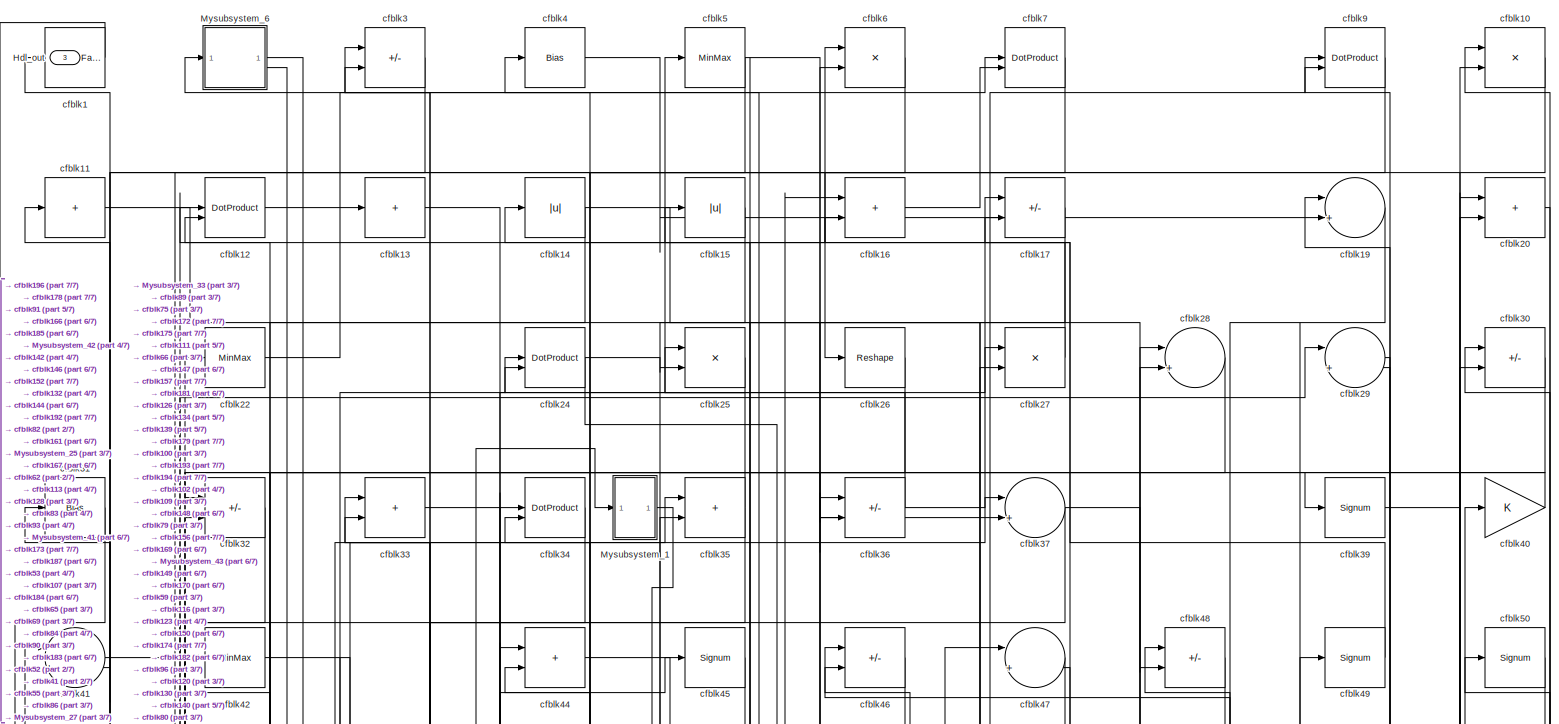
[diagram: root canvas - part 1/7, full width, top band]
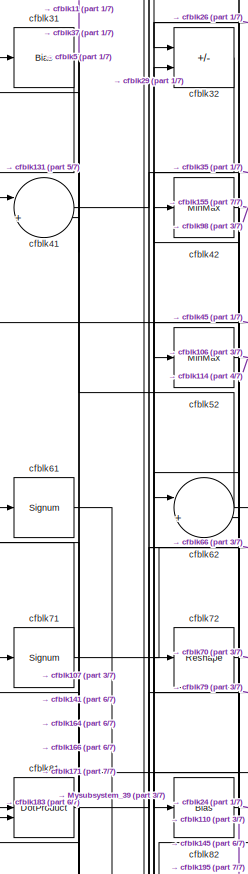
[diagram: root canvas - part 2/7, top left region]
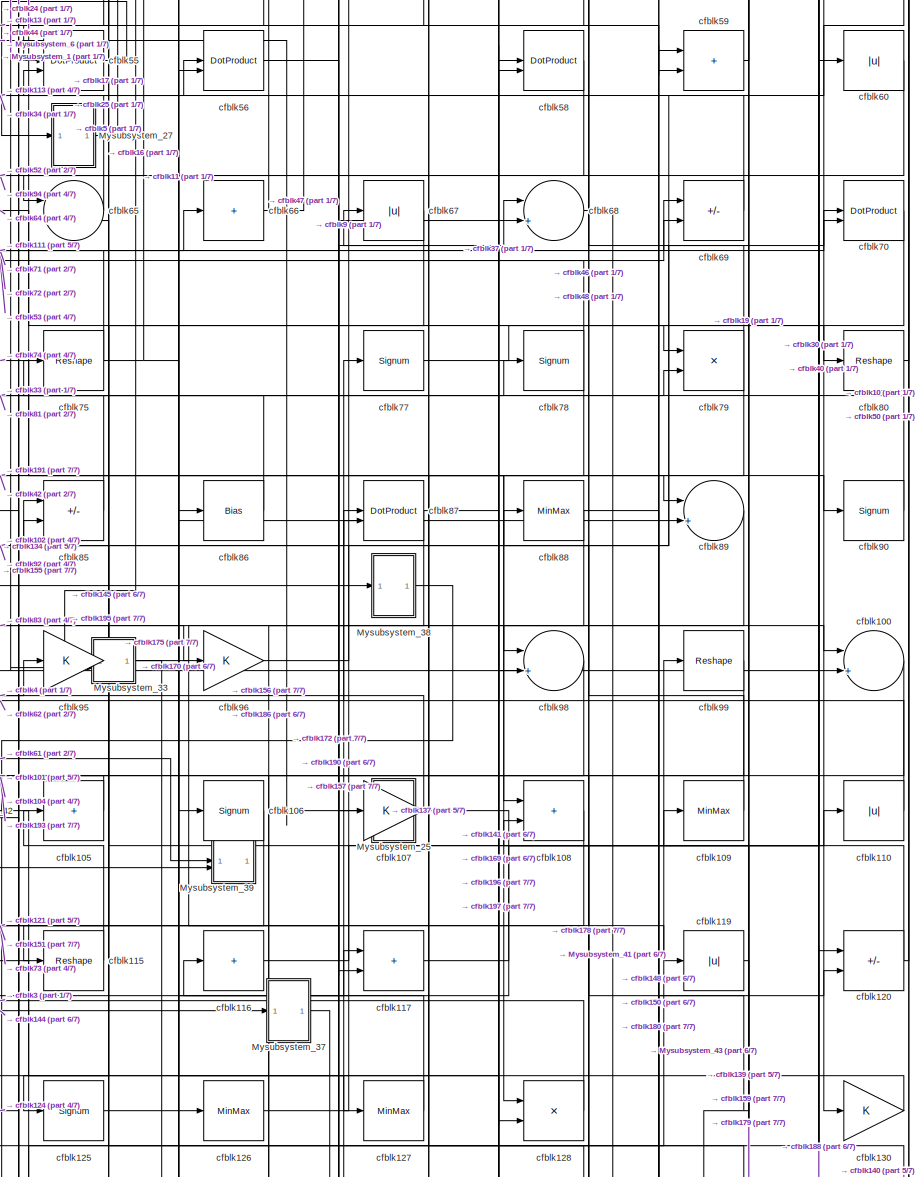
[diagram: root canvas - part 3/7, middle right region]
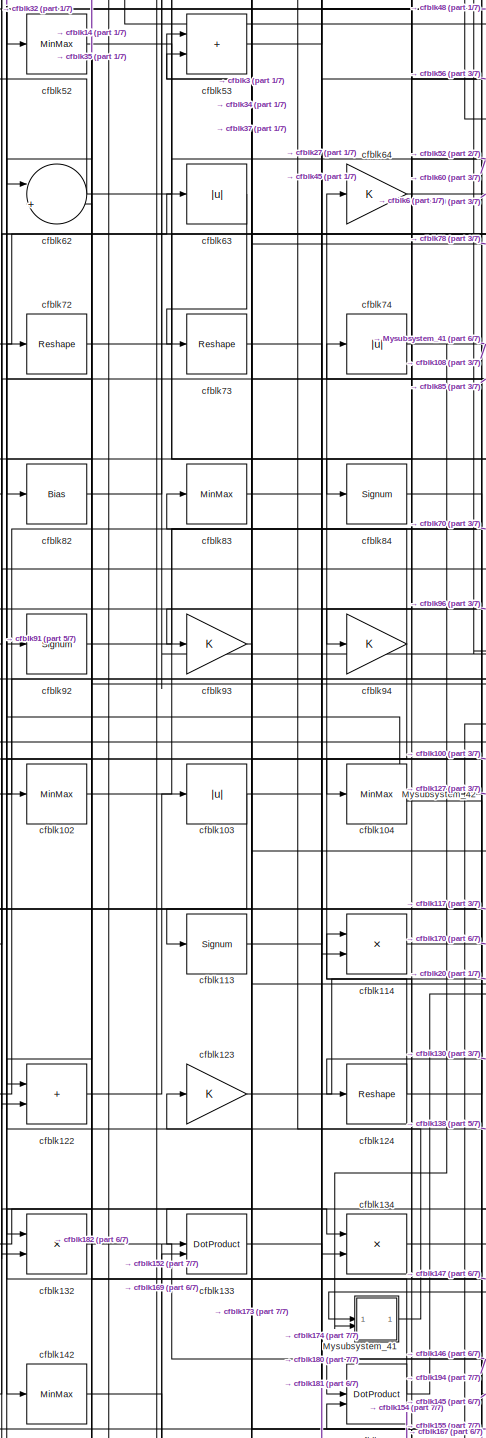
[diagram: root canvas - part 4/7, middle left region]
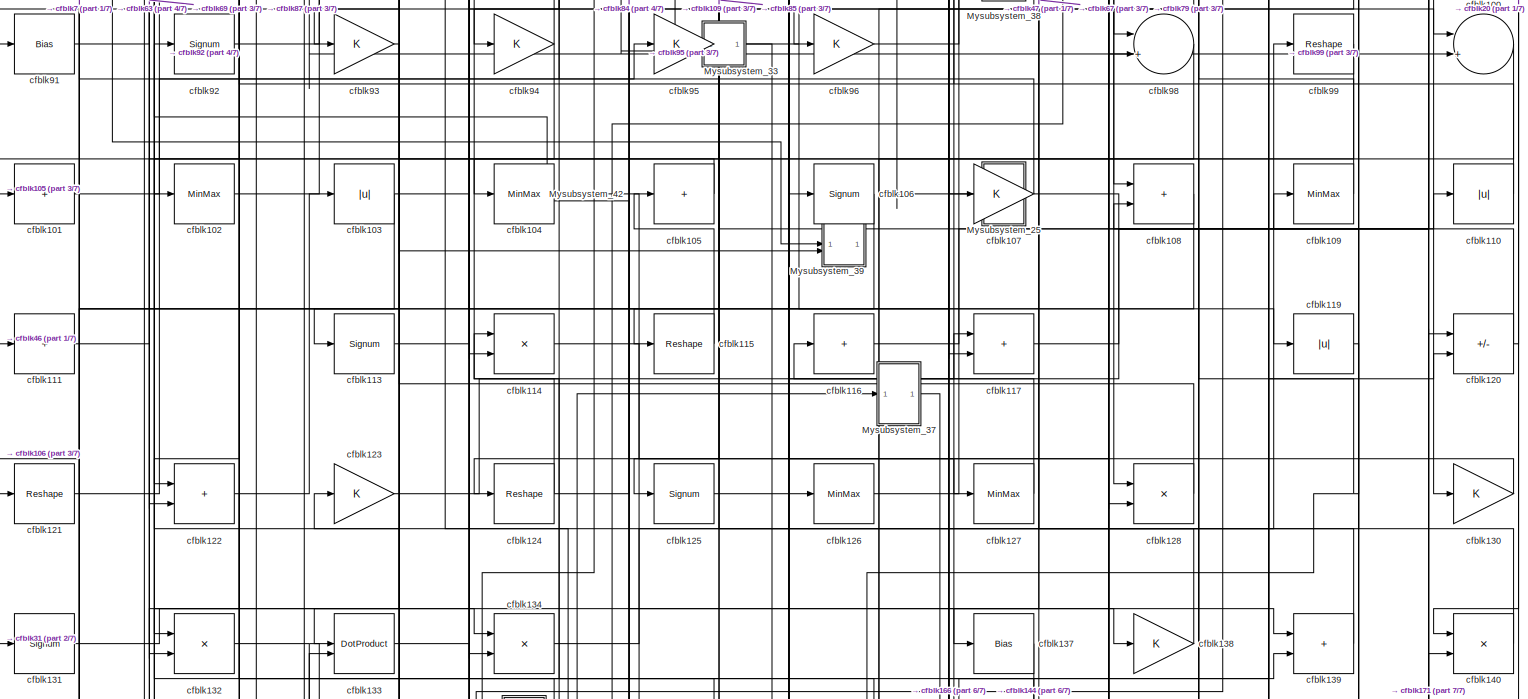
[diagram: root canvas - part 5/7, full width, middle band]
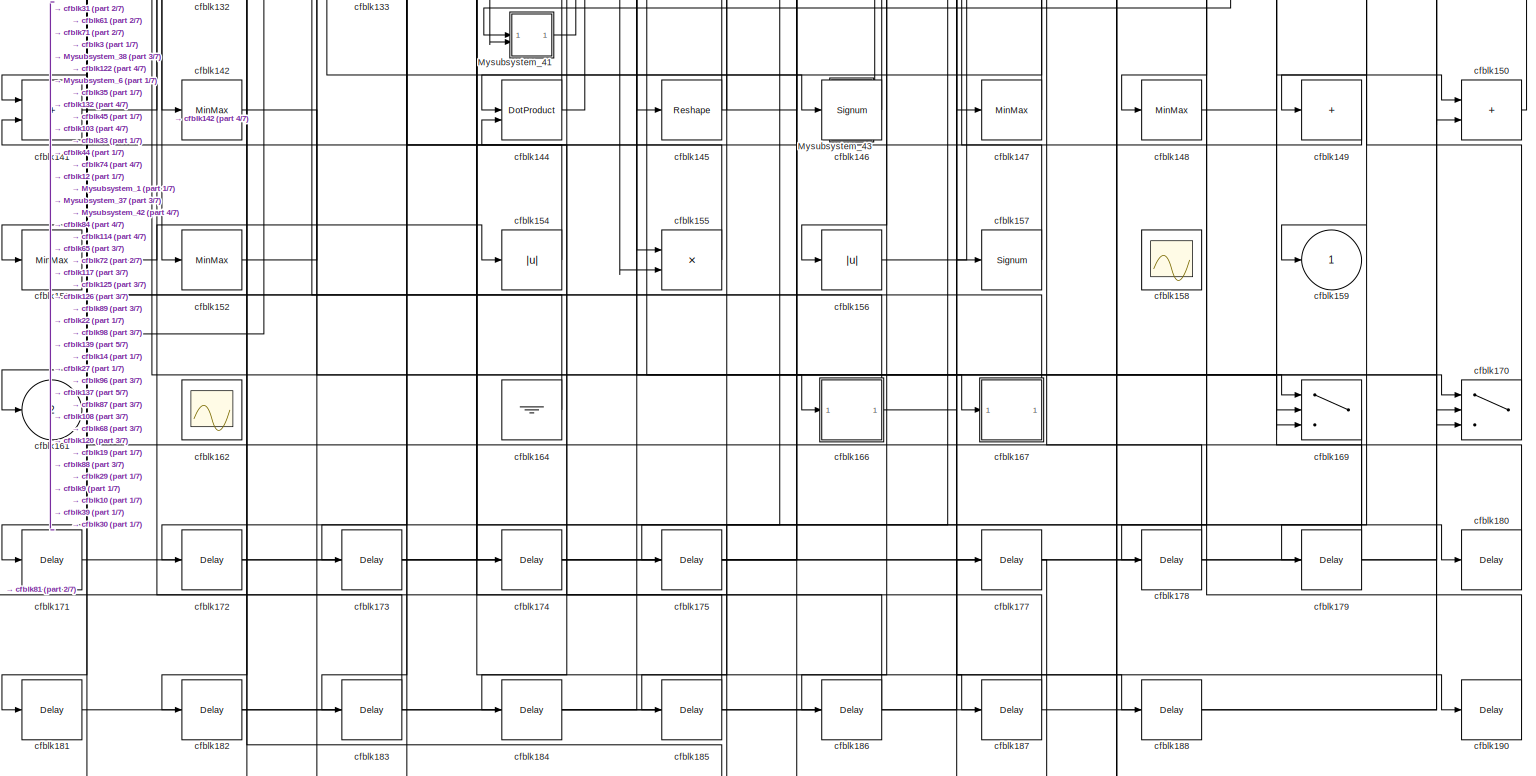
[diagram: root canvas - part 6/7, full width, bottom band]
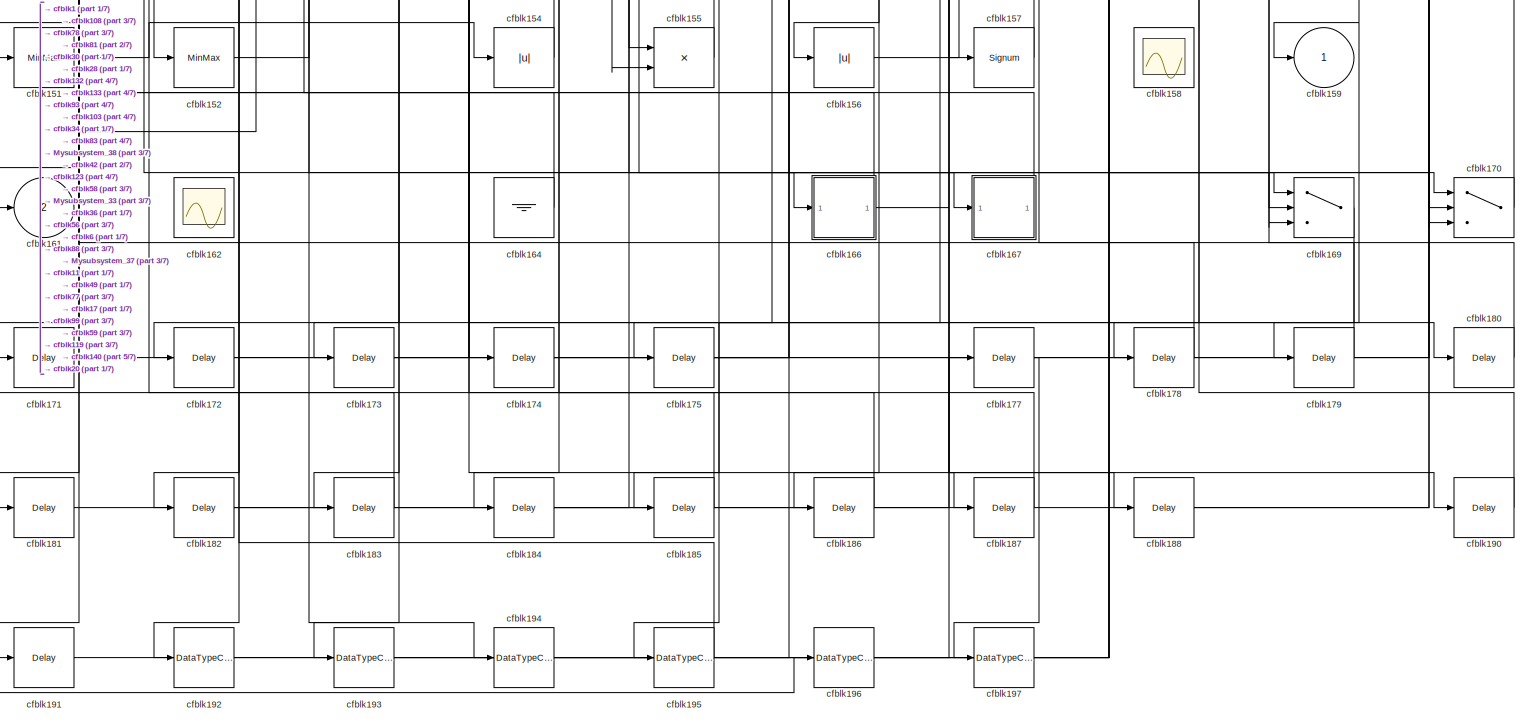
[diagram: root canvas - part 7/7, full width, bottom band]
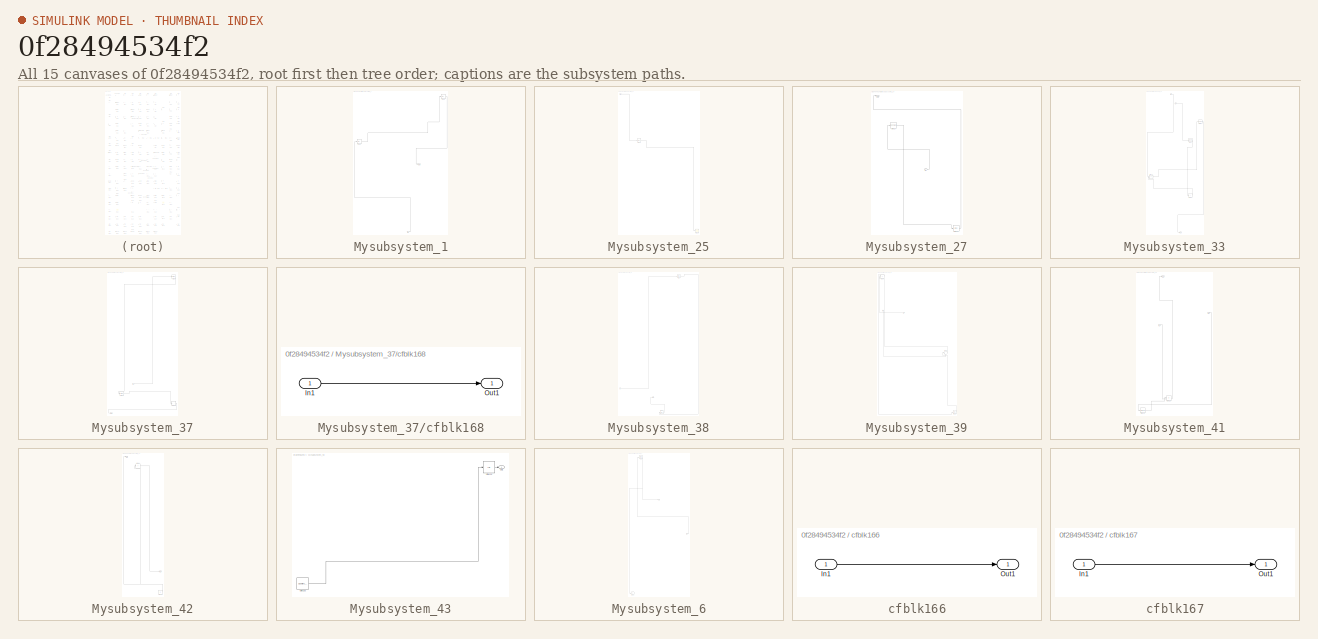
[diagram: thumbnail index - all 15 canvases of the model, root first then tree order]
MODEL slx_0f28494534f2
KIND model
CONFIG AbsTol = auto
CONFIG EnableMultiTasking = off
CONFIG FixedStep = auto
CONFIG MaxStep = auto
CONFIG MinStep = auto
CONFIG RelTol = 1e-3
CONFIG SampleTimeConstraint = Unconstrained
CONFIG SolverName = VariableStepAuto
CONFIG StartTime = 0.0
CONFIG StopTime = 10.0
BLOCK [Outport] Hdl_out
  OutDataTypeStr = uint8
  Port = 3
BLOCK [SubSystem] Mysubsystem_1
  RTWFcnName = Mysubsystem_1
  RTWFcnNameOpts = User specified
  RTWFileNameOpts = Use function name
  RTWSystemCode = Reusable function
  TreatAsAtomicUnit = on
BLOCK [Inport] Mysubsystem_1/In1
BLOCK [Outport] Mysubsystem_1/Out1
BLOCK [Abs] Mysubsystem_1/cfblk18
  SaturateOnIntegerOverflow = off
BLOCK [Abs] Mysubsystem_1/cfblk51
  SaturateOnIntegerOverflow = off
BLOCK [SubSystem] Mysubsystem_25
  RTWFcnName = Mysubsystem_25
  RTWFcnNameOpts = User specified
  RTWFileNameOpts = Use function name
  RTWSystemCode = Reusable function
  TreatAsAtomicUnit = on
BLOCK [Inport] Mysubsystem_25/In1
BLOCK [Scope] Mysubsystem_25/cfblk160
  Floating = off
  NumInputPorts = 1
  ScopeSpecificationString = Simulink.scopes.TimeScopeBlockCfg('CurrentConfiguration', extmgr.ConfigurationSet(extmgr.Configuration('Core','General UI',true),extmgr.Configuration('Core','Source UI',true),extmgr.Configuration('Sources','WiredSimulink',true,'DataLoggingVariableName','ScopeData2','DataLoggingSaveFormat','Array','DataLoggingLimitDataPoints',true,'DataLoggingDecimation','1'),extmgr.Configuration('Visuals','Time Do...<+868ch>
BLOCK [Bias] Mysubsystem_25/cfblk54
  Bias = 0.0
  SaturateOnIntegerOverflow = off
BLOCK [SubSystem] Mysubsystem_27
  RTWFcnName = Mysubsystem_27
  RTWFcnNameOpts = User specified
  RTWFileNameOpts = Use function name
  RTWSystemCode = Reusable function
  TreatAsAtomicUnit = on
BLOCK [Inport] Mysubsystem_27/In1
BLOCK [Outport] Mysubsystem_27/Out1
BLOCK [Reshape] Mysubsystem_27/cfblk23
BLOCK [Bias] Mysubsystem_27/cfblk97
  Bias = 0.0
  SaturateOnIntegerOverflow = off
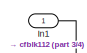
[diagram: Mysubsystem_33 - part 1/4, top center region]
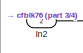
[diagram: Mysubsystem_33 - part 2/4, top center region]
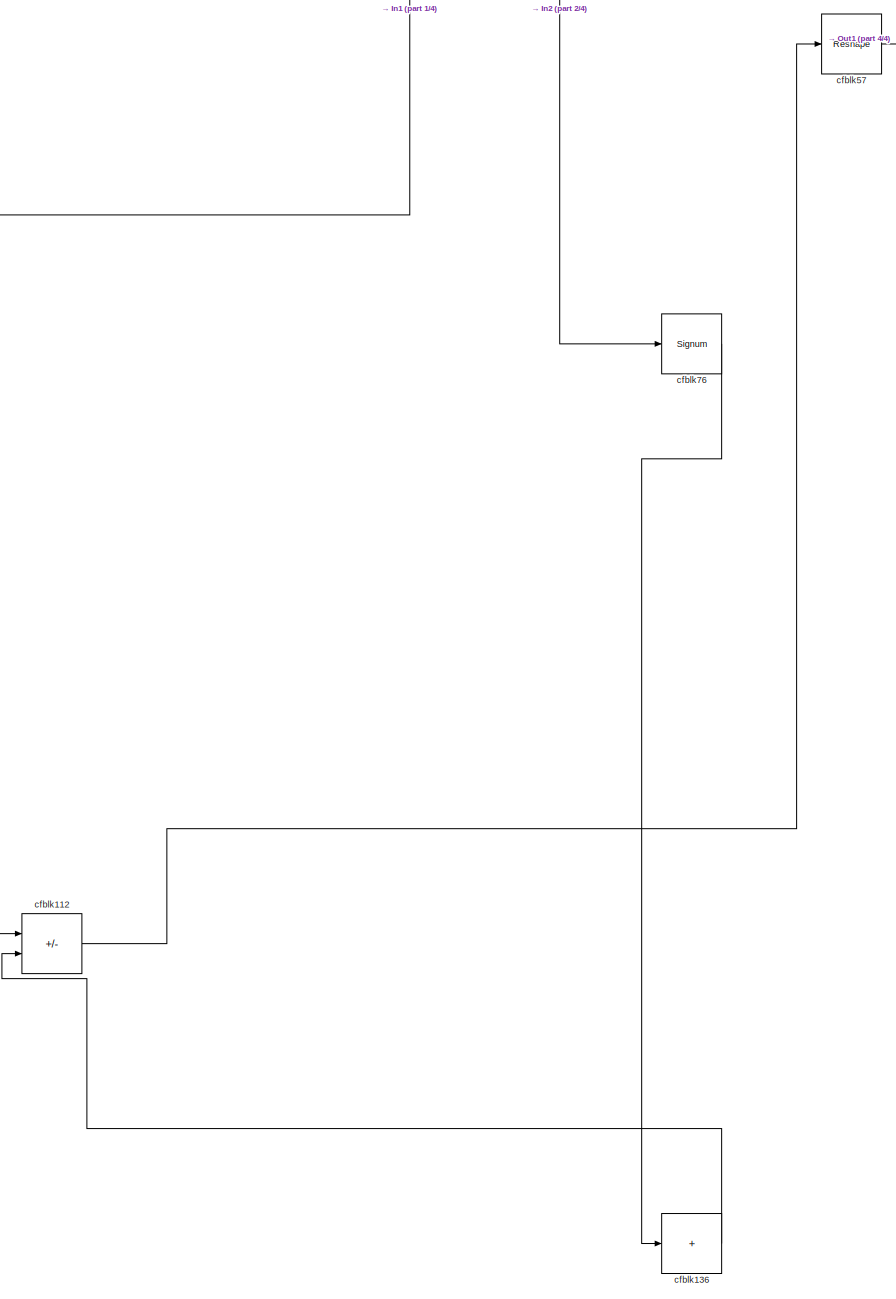
[diagram: Mysubsystem_33 - part 3/4, full width, middle band]
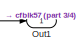
[diagram: Mysubsystem_33 - part 4/4, bottom center region]
BLOCK [SubSystem] Mysubsystem_33
  RTWFcnName = Mysubsystem_33
  RTWFcnNameOpts = User specified
  RTWFileNameOpts = Use function name
  RTWSystemCode = Reusable function
  TreatAsAtomicUnit = on
BLOCK [Inport] Mysubsystem_33/In1
BLOCK [Inport] Mysubsystem_33/In2
  Port = 2
BLOCK [Outport] Mysubsystem_33/Out1
BLOCK [Sum] Mysubsystem_33/cfblk112
  IconShape = rectangular
  Inputs = +-
BLOCK [Sum] Mysubsystem_33/cfblk136
  IconShape = rectangular
  Inputs = +
BLOCK [Reshape] Mysubsystem_33/cfblk57
BLOCK [Signum] Mysubsystem_33/cfblk76
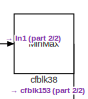
[diagram: Mysubsystem_37 - part 1/2, top right region]
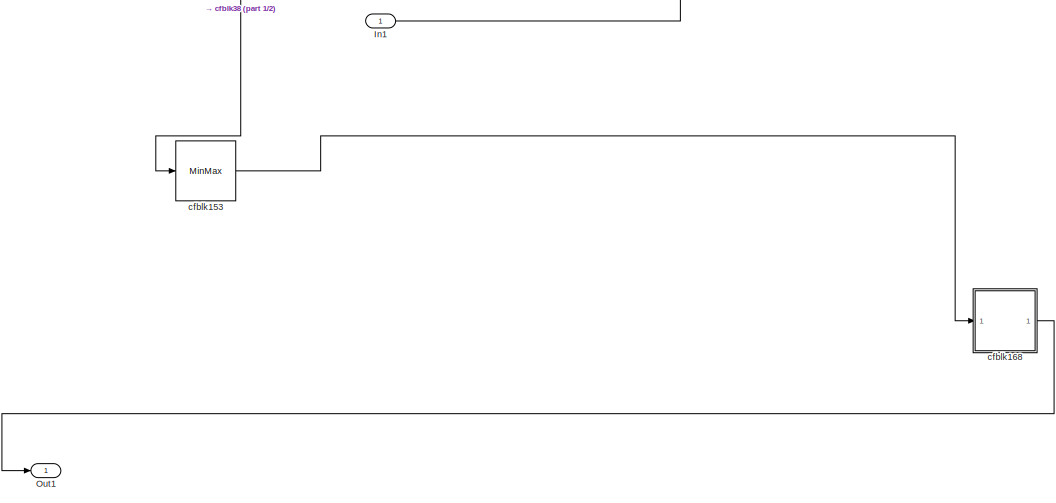
[diagram: Mysubsystem_37 - part 2/2, full width, bottom band]
BLOCK [SubSystem] Mysubsystem_37
  RTWFcnName = Mysubsystem_37
  RTWFcnNameOpts = User specified
  RTWFileNameOpts = Use function name
  RTWSystemCode = Reusable function
  TreatAsAtomicUnit = on
BLOCK [Inport] Mysubsystem_37/In1
BLOCK [Outport] Mysubsystem_37/Out1
BLOCK [MinMax] Mysubsystem_37/cfblk153
BLOCK [SubSystem] Mysubsystem_37/cfblk168
  LibrarySourceBlock = hdlsllib/Ports &\nSubsystems/Subsystem
BLOCK [Inport] Mysubsystem_37/cfblk168/In1
BLOCK [Outport] Mysubsystem_37/cfblk168/Out1
BLOCK [MinMax] Mysubsystem_37/cfblk38
BLOCK [SubSystem] Mysubsystem_38
  RTWFcnName = Mysubsystem_38
  RTWFcnNameOpts = User specified
  RTWFileNameOpts = Use function name
  RTWSystemCode = Reusable function
  TreatAsAtomicUnit = on
BLOCK [Inport] Mysubsystem_38/In1
BLOCK [Outport] Mysubsystem_38/Out1
BLOCK [Delay] Mysubsystem_38/cfblk176
  InputPortMap = u0
  SampleTime = 1
BLOCK [MinMax] Mysubsystem_38/cfblk8
BLOCK [SubSystem] Mysubsystem_39
  RTWFcnName = Mysubsystem_39
  RTWFcnNameOpts = User specified
  RTWFileNameOpts = Use function name
  RTWSystemCode = Reusable function
  TreatAsAtomicUnit = on
BLOCK [Inport] Mysubsystem_39/In1
BLOCK [Inport] Mysubsystem_39/In2
  Port = 2
BLOCK [Sum] Mysubsystem_39/cfblk118
  Inputs = |++
BLOCK [Delay] Mysubsystem_39/cfblk189
  InputPortMap = u0
  SampleTime = 1
BLOCK [Product] Mysubsystem_39/cfblk21
  Inputs = */
  RndMeth = Zero
  SaturateOnIntegerOverflow = on
BLOCK [SubSystem] Mysubsystem_41
  RTWFcnName = Mysubsystem_41
  RTWFcnNameOpts = User specified
  RTWFileNameOpts = Use function name
  RTWSystemCode = Reusable function
  TreatAsAtomicUnit = on
BLOCK [Inport] Mysubsystem_41/In1
BLOCK [Inport] Mysubsystem_41/In2
  Port = 2
BLOCK [Outport] Mysubsystem_41/Out1
BLOCK [Product] Mysubsystem_41/cfblk135
  Inputs = */
  RndMeth = Zero
  SaturateOnIntegerOverflow = on
BLOCK [Signum] Mysubsystem_41/cfblk143
BLOCK [SubSystem] Mysubsystem_42
  RTWFcnName = Mysubsystem_42
  RTWFcnNameOpts = User specified
  RTWFileNameOpts = Use function name
  RTWSystemCode = Reusable function
  TreatAsAtomicUnit = on
BLOCK [Outport] Mysubsystem_42/Out1
BLOCK [Outport] Mysubsystem_42/Out2
  Port = 2
BLOCK [Constant] Mysubsystem_42/cfblk165
  SampleTime = -1
BLOCK [Sum] Mysubsystem_42/cfblk43
  IconShape = rectangular
  Inputs = +
BLOCK [SubSystem] Mysubsystem_43
  RTWFcnName = Mysubsystem_43
  RTWFcnNameOpts = User specified
  RTWFileNameOpts = Use function name
  RTWSystemCode = Reusable function
  TreatAsAtomicUnit = on
BLOCK [Outport] Mysubsystem_43/Out1
BLOCK [Abs] Mysubsystem_43/cfblk129
  SaturateOnIntegerOverflow = off
BLOCK [Reference] Mysubsystem_43/cfblk163  REF=hdlsllib/Sources/Counter
Limited
  SourceBlock = hdlsllib/Sources/Counter\nLimited
  SourceType = Counter Limited
BLOCK [SubSystem] Mysubsystem_6
  RTWFcnName = Mysubsystem_6
  RTWFcnNameOpts = User specified
  RTWFileNameOpts = Use function name
  RTWSystemCode = Reusable function
  TreatAsAtomicUnit = on
BLOCK [Outport] Mysubsystem_6/cfblk161
  Port = 2
  VectorParamsAs1DForOutWhenUnconnected = off
BLOCK [Reference] Mysubsystem_6/cfblk2  REF=hdlsllib/Logic and Bit
Operations/Bit Slice
  SourceBlock = hdlsllib/Logic and Bit\nOperations/Bit Slice
  SourceType = Bit Slice
BLOCK [Inport] Mysubsystem_6/u
BLOCK [Outport] Mysubsystem_6/y
BLOCK [Reference] cfblk1  REF=hdlsllib/Logic and Bit
Operations/Detect Fall
Nonpositive
  SourceBlock = hdlsllib/Logic and Bit\nOperations/Detect Fall\nNonpositive
  SourceType = Detect Fall Nonpositive
BLOCK [Product] cfblk10
  Inputs = */
  OutDataTypeStr = uint8
  RndMeth = Zero
  SaturateOnIntegerOverflow = on
BLOCK [Sum] cfblk100
  Inputs = |++
  OutDataTypeStr = uint8
BLOCK [Sum] cfblk101
  IconShape = rectangular
  Inputs = +
  OutDataTypeStr = uint8
BLOCK [MinMax] cfblk102
  OutDataTypeStr = uint8
BLOCK [Abs] cfblk103
  OutDataTypeStr = uint8
  SaturateOnIntegerOverflow = off
BLOCK [MinMax] cfblk104
  OutDataTypeStr = uint8
BLOCK [Sum] cfblk105
  IconShape = rectangular
  Inputs = +
  OutDataTypeStr = uint8
BLOCK [Signum] cfblk106
BLOCK [Gain] cfblk107
  OutDataTypeStr = uint8
BLOCK [Sum] cfblk108
  IconShape = rectangular
  OutDataTypeStr = uint8
BLOCK [MinMax] cfblk109
  OutDataTypeStr = uint8
BLOCK [Sum] cfblk11
  IconShape = rectangular
  Inputs = +
  OutDataTypeStr = uint8
BLOCK [Abs] cfblk110
  OutDataTypeStr = uint8
  SaturateOnIntegerOverflow = off
BLOCK [Sum] cfblk111
  IconShape = rectangular
  Inputs = +
  OutDataTypeStr = uint8
BLOCK [Signum] cfblk113
BLOCK [Product] cfblk114
  Inputs = */
  OutDataTypeStr = uint8
  RndMeth = Zero
  SaturateOnIntegerOverflow = on
BLOCK [Reshape] cfblk115
BLOCK [Sum] cfblk116
  IconShape = rectangular
  Inputs = +
  OutDataTypeStr = uint8
BLOCK [Sum] cfblk117
  IconShape = rectangular
  OutDataTypeStr = uint8
BLOCK [Abs] cfblk119
  OutDataTypeStr = uint8
  SaturateOnIntegerOverflow = off
BLOCK [DotProduct] cfblk12
  OutDataTypeStr = uint8
BLOCK [Sum] cfblk120
  IconShape = rectangular
  Inputs = +-
  OutDataTypeStr = uint8
BLOCK [Reshape] cfblk121
BLOCK [Sum] cfblk122
  IconShape = rectangular
  OutDataTypeStr = uint8
BLOCK [Gain] cfblk123
  OutDataTypeStr = uint8
BLOCK [Reshape] cfblk124
BLOCK [Signum] cfblk125
BLOCK [MinMax] cfblk126
  OutDataTypeStr = uint8
BLOCK [MinMax] cfblk127
  OutDataTypeStr = uint8
BLOCK [Product] cfblk128
  Inputs = */
  OutDataTypeStr = uint8
  RndMeth = Zero
  SaturateOnIntegerOverflow = on
BLOCK [Sum] cfblk13
  IconShape = rectangular
  Inputs = +
  OutDataTypeStr = uint8
BLOCK [Gain] cfblk130
  OutDataTypeStr = uint8
BLOCK [Signum] cfblk131
BLOCK [Product] cfblk132
  Inputs = */
  OutDataTypeStr = uint8
  RndMeth = Zero
  SaturateOnIntegerOverflow = on
BLOCK [DotProduct] cfblk133
  OutDataTypeStr = uint8
BLOCK [Product] cfblk134
  Inputs = */
  OutDataTypeStr = uint8
  RndMeth = Zero
  SaturateOnIntegerOverflow = on
BLOCK [Bias] cfblk137
  Bias = 0.0
  SaturateOnIntegerOverflow = off
BLOCK [Gain] cfblk138
  OutDataTypeStr = uint8
BLOCK [Sum] cfblk139
  IconShape = rectangular
  OutDataTypeStr = uint8
BLOCK [Abs] cfblk14
  OutDataTypeStr = uint8
  SaturateOnIntegerOverflow = off
BLOCK [Product] cfblk140
  Inputs = */
  OutDataTypeStr = uint8
  RndMeth = Zero
  SaturateOnIntegerOverflow = on
BLOCK [Sum] cfblk141
  IconShape = rectangular
  OutDataTypeStr = uint8
BLOCK [MinMax] cfblk142
  OutDataTypeStr = uint8
BLOCK [DotProduct] cfblk144
  OutDataTypeStr = uint8
BLOCK [Reshape] cfblk145
BLOCK [Signum] cfblk146
BLOCK [MinMax] cfblk147
  OutDataTypeStr = uint8
BLOCK [MinMax] cfblk148
  OutDataTypeStr = uint8
BLOCK [Sum] cfblk149
  IconShape = rectangular
  Inputs = +
  OutDataTypeStr = uint8
BLOCK [Abs] cfblk15
  OutDataTypeStr = uint8
  SaturateOnIntegerOverflow = off
BLOCK [Sum] cfblk150
  IconShape = rectangular
  OutDataTypeStr = uint8
BLOCK [MinMax] cfblk151
  OutDataTypeStr = uint8
BLOCK [MinMax] cfblk152
  OutDataTypeStr = uint8
BLOCK [Abs] cfblk154
  OutDataTypeStr = uint8
  SaturateOnIntegerOverflow = off
BLOCK [Product] cfblk155
  Inputs = */
  OutDataTypeStr = uint8
  RndMeth = Zero
  SaturateOnIntegerOverflow = on
BLOCK [Abs] cfblk156
  OutDataTypeStr = uint8
  SaturateOnIntegerOverflow = off
BLOCK [Signum] cfblk157
BLOCK [Scope] cfblk158
  Floating = on
  NumInputPorts = 1
  ScopeSpecificationString = Simulink.scopes.TimeScopeBlockCfg('CurrentConfiguration', extmgr.ConfigurationSet(extmgr.Configuration('Core','General UI',true,'FigureColor',[0.156862745098039 0.156862745098039 0.156862745098039]),extmgr.Configuration('Core','Source UI',true),extmgr.Configuration('Sources','WiredSimulink',true,'DataLoggingVariableName','ScopeData1','DataLoggingSaveFormat','StructureWithTime','DataLoggingLimitDat...<+2713ch>
BLOCK [Outport] cfblk159
  OutDataTypeStr = uint8
  VectorParamsAs1DForOutWhenUnconnected = off
BLOCK [Sum] cfblk16
  IconShape = rectangular
  OutDataTypeStr = uint8
BLOCK [Outport] cfblk161
  OutDataTypeStr = uint8
  Port = 2
  VectorParamsAs1DForOutWhenUnconnected = off
BLOCK [Scope] cfblk162
  Floating = on
  NumInputPorts = 1
  ScopeSpecificationString = Simulink.scopes.TimeScopeBlockCfg('CurrentConfiguration', extmgr.ConfigurationSet(extmgr.Configuration('Core','General UI',true,'FigureColor',[0.156862745098039 0.156862745098039 0.156862745098039]),extmgr.Configuration('Core','Source UI',true),extmgr.Configuration('Sources','WiredSimulink',true,'DataLoggingVariableName','ScopeData1','DataLoggingSaveFormat','StructureWithTime','DataLoggingLimitDat...<+2713ch>
BLOCK [Ground] cfblk164
BLOCK [SubSystem] cfblk166
  LibrarySourceBlock = hdlsllib/Ports &\nSubsystems/Subsystem
BLOCK [Inport] cfblk166/In1
BLOCK [Outport] cfblk166/Out1
BLOCK [SubSystem] cfblk167
  LibrarySourceBlock = hdlsllib/Ports &\nSubsystems/Subsystem
BLOCK [Inport] cfblk167/In1
BLOCK [Outport] cfblk167/Out1
BLOCK [Switch] cfblk169
  InputSameDT = off
  OutDataTypeStr = uint8
  SaturateOnIntegerOverflow = off
BLOCK [Sum] cfblk17
  IconShape = rectangular
  Inputs = +-
  OutDataTypeStr = uint8
BLOCK [Switch] cfblk170
  InputSameDT = off
  OutDataTypeStr = uint8
  SaturateOnIntegerOverflow = off
BLOCK [Delay] cfblk171
  InputPortMap = u0
  SampleTime = 1
BLOCK [Delay] cfblk172
  InputPortMap = u0
  SampleTime = 1
BLOCK [Delay] cfblk173
  InputPortMap = u0
  SampleTime = 1
BLOCK [Delay] cfblk174
  InputPortMap = u0
  SampleTime = 1
BLOCK [Delay] cfblk175
  InputPortMap = u0
  SampleTime = 1
BLOCK [Delay] cfblk177
  InputPortMap = u0
  SampleTime = 1
BLOCK [Delay] cfblk178
  InputPortMap = u0
  SampleTime = 1
BLOCK [Delay] cfblk179
  InputPortMap = u0
  SampleTime = 1
BLOCK [Delay] cfblk180
  InputPortMap = u0
  SampleTime = 1
BLOCK [Delay] cfblk181
  InputPortMap = u0
  SampleTime = 1
BLOCK [Delay] cfblk182
  InputPortMap = u0
  SampleTime = 1
BLOCK [Delay] cfblk183
  InputPortMap = u0
  SampleTime = 1
BLOCK [Delay] cfblk184
  InputPortMap = u0
  SampleTime = 1
BLOCK [Delay] cfblk185
  InputPortMap = u0
  SampleTime = 1
BLOCK [Delay] cfblk186
  InputPortMap = u0
  SampleTime = 1
BLOCK [Delay] cfblk187
  InputPortMap = u0
  SampleTime = 1
BLOCK [Delay] cfblk188
  InputPortMap = u0
  SampleTime = 1
BLOCK [Sum] cfblk19
  Inputs = |++
  OutDataTypeStr = uint8
BLOCK [Delay] cfblk190
  InputPortMap = u0
  SampleTime = 1
BLOCK [Delay] cfblk191
  InputPortMap = u0
  SampleTime = 1
BLOCK [DataTypeConversion] cfblk192
  OutDataTypeStr = uint8
  RndMeth = Floor
  SaturateOnIntegerOverflow = off
BLOCK [DataTypeConversion] cfblk193
  OutDataTypeStr = uint8
  RndMeth = Floor
  SaturateOnIntegerOverflow = off
BLOCK [DataTypeConversion] cfblk194
  OutDataTypeStr = uint8
  RndMeth = Floor
  SaturateOnIntegerOverflow = off
BLOCK [DataTypeConversion] cfblk195
  OutDataTypeStr = uint8
  RndMeth = Floor
  SaturateOnIntegerOverflow = off
BLOCK [DataTypeConversion] cfblk196
  OutDataTypeStr = uint8
  RndMeth = Floor
  SaturateOnIntegerOverflow = off
BLOCK [DataTypeConversion] cfblk197
  OutDataTypeStr = uint8
  RndMeth = Floor
  SaturateOnIntegerOverflow = off
BLOCK [Sum] cfblk20
  IconShape = rectangular
  OutDataTypeStr = uint8
BLOCK [MinMax] cfblk22
  OutDataTypeStr = uint8
BLOCK [DotProduct] cfblk24
  OutDataTypeStr = uint8
BLOCK [Product] cfblk25
  Inputs = */
  OutDataTypeStr = uint8
  RndMeth = Zero
  SaturateOnIntegerOverflow = on
BLOCK [Reshape] cfblk26
BLOCK [Product] cfblk27
  Inputs = */
  OutDataTypeStr = uint8
  RndMeth = Zero
  SaturateOnIntegerOverflow = on
BLOCK [Sum] cfblk28
  Inputs = |++
  OutDataTypeStr = uint8
BLOCK [Sum] cfblk29
  Inputs = |++
  OutDataTypeStr = uint8
BLOCK [Sum] cfblk3
  IconShape = rectangular
  Inputs = +-
  OutDataTypeStr = uint8
BLOCK [Sum] cfblk30
  IconShape = rectangular
  Inputs = +-
  OutDataTypeStr = uint8
BLOCK [Bias] cfblk31
  Bias = 0.0
  SaturateOnIntegerOverflow = off
BLOCK [Sum] cfblk32
  IconShape = rectangular
  Inputs = +-
  OutDataTypeStr = uint8
BLOCK [Sum] cfblk33
  IconShape = rectangular
  OutDataTypeStr = uint8
BLOCK [DotProduct] cfblk34
  OutDataTypeStr = uint8
BLOCK [Sum] cfblk35
  IconShape = rectangular
  OutDataTypeStr = uint8
BLOCK [Sum] cfblk36
  IconShape = rectangular
  Inputs = +-
  OutDataTypeStr = uint8
BLOCK [Sum] cfblk37
  Inputs = |++
  OutDataTypeStr = uint8
BLOCK [Signum] cfblk39
BLOCK [Bias] cfblk4
  Bias = 0.0
  SaturateOnIntegerOverflow = off
BLOCK [Gain] cfblk40
  OutDataTypeStr = uint8
BLOCK [Sum] cfblk41
  Inputs = |++
  OutDataTypeStr = uint8
BLOCK [MinMax] cfblk42
  OutDataTypeStr = uint8
BLOCK [Sum] cfblk44
  IconShape = rectangular
  OutDataTypeStr = uint8
BLOCK [Signum] cfblk45
BLOCK [Sum] cfblk46
  IconShape = rectangular
  Inputs = +-
  OutDataTypeStr = uint8
BLOCK [Sum] cfblk47
  Inputs = |++
  OutDataTypeStr = uint8
BLOCK [Sum] cfblk48
  IconShape = rectangular
  Inputs = +-
  OutDataTypeStr = uint8
BLOCK [Signum] cfblk49
BLOCK [MinMax] cfblk5
  OutDataTypeStr = uint8
BLOCK [Signum] cfblk50
BLOCK [MinMax] cfblk52
  OutDataTypeStr = uint8
BLOCK [Sum] cfblk53
  IconShape = rectangular
  OutDataTypeStr = uint8
BLOCK [DotProduct] cfblk55
  OutDataTypeStr = uint8
BLOCK [DotProduct] cfblk56
  OutDataTypeStr = uint8
BLOCK [DotProduct] cfblk58
  OutDataTypeStr = uint8
BLOCK [Sum] cfblk59
  IconShape = rectangular
  OutDataTypeStr = uint8
BLOCK [Product] cfblk6
  Inputs = */
  OutDataTypeStr = uint8
  RndMeth = Zero
  SaturateOnIntegerOverflow = on
BLOCK [Abs] cfblk60
  OutDataTypeStr = uint8
  SaturateOnIntegerOverflow = off
BLOCK [Signum] cfblk61
BLOCK [Sum] cfblk62
  Inputs = |++
  OutDataTypeStr = uint8
BLOCK [Abs] cfblk63
  OutDataTypeStr = uint8
  SaturateOnIntegerOverflow = off
BLOCK [Gain] cfblk64
  OutDataTypeStr = uint8
BLOCK [Sum] cfblk65
  Inputs = |++
  OutDataTypeStr = uint8
BLOCK [Sum] cfblk66
  IconShape = rectangular
  Inputs = +
  OutDataTypeStr = uint8
BLOCK [Abs] cfblk67
  OutDataTypeStr = uint8
  SaturateOnIntegerOverflow = off
BLOCK [Sum] cfblk68
  Inputs = |++
  OutDataTypeStr = uint8
BLOCK [Sum] cfblk69
  IconShape = rectangular
  Inputs = +-
  OutDataTypeStr = uint8
BLOCK [DotProduct] cfblk7
  OutDataTypeStr = uint8
BLOCK [DotProduct] cfblk70
  OutDataTypeStr = uint8
BLOCK [Signum] cfblk71
BLOCK [Reshape] cfblk72
BLOCK [Reshape] cfblk73
BLOCK [Abs] cfblk74
  OutDataTypeStr = uint8
  SaturateOnIntegerOverflow = off
BLOCK [Reshape] cfblk75
BLOCK [Signum] cfblk77
BLOCK [Signum] cfblk78
BLOCK [Product] cfblk79
  Inputs = */
  OutDataTypeStr = uint8
  RndMeth = Zero
  SaturateOnIntegerOverflow = on
BLOCK [Reshape] cfblk80
BLOCK [DotProduct] cfblk81
  OutDataTypeStr = uint8
BLOCK [Bias] cfblk82
  Bias = 0.0
  SaturateOnIntegerOverflow = off
BLOCK [MinMax] cfblk83
  OutDataTypeStr = uint8
BLOCK [Signum] cfblk84
BLOCK [Sum] cfblk85
  IconShape = rectangular
  Inputs = +-
  OutDataTypeStr = uint8
BLOCK [Bias] cfblk86
  Bias = 0.0
  SaturateOnIntegerOverflow = off
BLOCK [DotProduct] cfblk87
  OutDataTypeStr = uint8
BLOCK [MinMax] cfblk88
  OutDataTypeStr = uint8
BLOCK [Sum] cfblk89
  Inputs = |++
  OutDataTypeStr = uint8
BLOCK [DotProduct] cfblk9
  OutDataTypeStr = uint8
BLOCK [Signum] cfblk90
BLOCK [Bias] cfblk91
  Bias = 0.0
  SaturateOnIntegerOverflow = off
BLOCK [Signum] cfblk92
BLOCK [Gain] cfblk93
  OutDataTypeStr = uint8
BLOCK [Gain] cfblk94
  OutDataTypeStr = uint8
BLOCK [Gain] cfblk95
  OutDataTypeStr = uint8
BLOCK [Gain] cfblk96
  OutDataTypeStr = uint8
BLOCK [Sum] cfblk98
  Inputs = |++
  OutDataTypeStr = uint8
BLOCK [Reshape] cfblk99
LINE Mysubsystem_1/In1:1 -> Mysubsystem_1/cfblk51:1
LINE Mysubsystem_1/cfblk18:1 -> Mysubsystem_1/Out1:1
LINE Mysubsystem_1/cfblk51:1 -> Mysubsystem_1/cfblk18:1
LINE Mysubsystem_1:1 -> Mysubsystem_33:2
LINE Mysubsystem_25/In1:1 -> Mysubsystem_25/cfblk54:1
LINE Mysubsystem_25/cfblk54:1 -> Mysubsystem_25/cfblk160:1
LINE Mysubsystem_27/In1:1 -> Mysubsystem_27/cfblk23:1
LINE Mysubsystem_27/cfblk23:1 -> Mysubsystem_27/cfblk97:1
LINE Mysubsystem_27/cfblk97:1 -> Mysubsystem_27/Out1:1
LINE Mysubsystem_27:1 -> Mysubsystem_6:1
LINE Mysubsystem_33/In1:1 -> Mysubsystem_33/cfblk112:1
LINE Mysubsystem_33/In2:1 -> Mysubsystem_33/cfblk76:1
LINE Mysubsystem_33/cfblk112:1 -> Mysubsystem_33/cfblk57:1
LINE Mysubsystem_33/cfblk136:1 -> Mysubsystem_33/cfblk112:2
LINE Mysubsystem_33/cfblk57:1 -> Mysubsystem_33/Out1:1
LINE Mysubsystem_33/cfblk76:1 -> Mysubsystem_33/cfblk136:1
LINE Mysubsystem_33:1 -> cfblk175:1
LINE Mysubsystem_37/In1:1 -> Mysubsystem_37/cfblk38:1
LINE Mysubsystem_37/cfblk153:1 -> Mysubsystem_37/cfblk168:1
LINE Mysubsystem_37/cfblk168/In1:1 -> Mysubsystem_37/cfblk168/Out1:1
LINE Mysubsystem_37/cfblk168:1 -> Mysubsystem_37/Out1:1
LINE Mysubsystem_37/cfblk38:1 -> Mysubsystem_37/cfblk153:1
LINE Mysubsystem_37:1 -> cfblk172:1
LINE Mysubsystem_38/In1:1 -> Mysubsystem_38/cfblk8:1
LINE Mysubsystem_38/cfblk176:1 -> Mysubsystem_38/Out1:1
LINE Mysubsystem_38/cfblk8:1 -> Mysubsystem_38/cfblk176:1
LINE Mysubsystem_38:1 -> cfblk155:2
LINE Mysubsystem_39/In1:1 -> Mysubsystem_39/cfblk118:2
LINE Mysubsystem_39/In2:1 -> Mysubsystem_39/cfblk21:2
LINE Mysubsystem_39/cfblk118:1 -> Mysubsystem_39/cfblk21:1
LINE Mysubsystem_39/cfblk189:1 -> Mysubsystem_39/cfblk118:1
LINE Mysubsystem_39/cfblk21:1 -> Mysubsystem_39/cfblk189:1
LINE Mysubsystem_41/In1:1 -> Mysubsystem_41/cfblk143:1
LINE Mysubsystem_41/In2:1 -> Mysubsystem_41/cfblk135:2
LINE Mysubsystem_41/cfblk135:1 -> Mysubsystem_41/Out1:1
LINE Mysubsystem_41/cfblk143:1 -> Mysubsystem_41/cfblk135:1
LINE Mysubsystem_41:1 -> Mysubsystem_1:1
NET Mysubsystem_42/cfblk165:1 -> Mysubsystem_42/Out1:1, Mysubsystem_42/cfblk43:1
LINE Mysubsystem_42/cfblk43:1 -> Mysubsystem_42/Out2:1
LINE Mysubsystem_42:1 -> cfblk32:2
LINE Mysubsystem_42:2 -> cfblk145:1
LINE Mysubsystem_43/cfblk129:1 -> Mysubsystem_43/Out1:1
LINE Mysubsystem_43/cfblk163:1 -> Mysubsystem_43/cfblk129:1
NET Mysubsystem_43:1 -> cfblk29:2, cfblk88:1
NET Mysubsystem_6/cfblk2:1 -> Mysubsystem_6/cfblk161:1, Mysubsystem_6/y:1
LINE Mysubsystem_6/u:1 -> Mysubsystem_6/cfblk2:1
LINE Mysubsystem_6:1 -> Mysubsystem_25:1
LINE Mysubsystem_6:2 -> cfblk161:1
LINE cfblk100:1 -> cfblk104:1
LINE cfblk101:1 -> cfblk95:1
LINE cfblk102:1 -> cfblk85:1
NET cfblk103:1 -> cfblk180:1, cfblk181:1
LINE cfblk104:1 -> cfblk127:1
LINE cfblk105:1 -> cfblk101:1
LINE cfblk106:1 -> cfblk121:1
NET cfblk107:1 -> cfblk110:1, cfblk4:1, cfblk81:2
LINE cfblk108:1 -> cfblk151:1
NET cfblk109:1 -> cfblk48:1, cfblk55:2
NET cfblk10:1 -> cfblk150:2, cfblk26:1
NET cfblk110:1 -> cfblk62:2, cfblk87:2
LINE cfblk111:1 -> cfblk69:1
LINE cfblk113:1 -> cfblk56:1
LINE cfblk114:1 -> cfblk170:1
LINE cfblk115:1 -> cfblk105:1
NET cfblk116:1 -> cfblk30:2, cfblk68:2
LINE cfblk117:1 -> cfblk60:1
NET cfblk119:1 -> cfblk159:1, cfblk179:1
NET cfblk11:1 -> cfblk157:1, cfblk16:2, cfblk86:1
NET cfblk120:1 -> cfblk50:1, cfblk75:1
LINE cfblk121:1 -> cfblk87:1
NET cfblk122:1 -> cfblk103:1, cfblk182:1
LINE cfblk123:1 -> cfblk20:1
NET cfblk124:1 -> cfblk74:1, cfblk78:1
NET cfblk125:1 -> cfblk170:2, cfblk69:2
LINE cfblk126:1 -> cfblk9:1
LINE cfblk127:1 -> cfblk116:1
LINE cfblk128:1 -> cfblk3:1
LINE cfblk12:1 -> cfblk13:1
LINE cfblk130:1 -> cfblk124:1
NET cfblk131:1 -> cfblk134:1, cfblk139:1
NET cfblk132:1 -> cfblk146:1, cfblk194:1
LINE cfblk133:1 -> cfblk174:1
LINE cfblk134:1 -> cfblk99:1
LINE cfblk137:1 -> cfblk144:1
LINE cfblk138:1 -> cfblk92:1
NET cfblk139:1 -> cfblk47:2, cfblk67:1
LINE cfblk13:1 -> cfblk59:2
NET cfblk140:1 -> cfblk109:1, cfblk85:2
NET cfblk141:1 -> Mysubsystem_38:1, cfblk31:1
LINE cfblk142:1 -> cfblk169:1
NET cfblk144:1 -> Mysubsystem_37:1, cfblk12:2
NET cfblk145:1 -> cfblk117:1, cfblk126:1, cfblk65:2, cfblk72:1, cfblk89:2
LINE cfblk146:1 -> cfblk22:1
LINE cfblk147:1 -> cfblk114:1
LINE cfblk148:1 -> cfblk120:2
LINE cfblk149:1 -> cfblk141:2
NET cfblk14:1 -> cfblk132:1, cfblk147:1, cfblk48:2
LINE cfblk150:1 -> cfblk30:1
LINE cfblk151:1 -> cfblk154:1
LINE cfblk152:1 -> cfblk133:2
LINE cfblk154:1 -> cfblk83:1
LINE cfblk155:1 -> cfblk123:1
LINE cfblk156:1 -> cfblk49:1
LINE cfblk157:1 -> cfblk77:1
LINE cfblk15:1 -> cfblk25:2
LINE cfblk164:1 -> cfblk71:1
LINE cfblk166/In1:1 -> cfblk166/Out1:1
NET cfblk166:1 -> cfblk139:2, cfblk188:1, cfblk61:1
LINE cfblk167/In1:1 -> cfblk167/Out1:1
LINE cfblk167:1 -> cfblk35:1
LINE cfblk169:1 -> cfblk185:1
LINE cfblk16:1 -> cfblk7:2
LINE cfblk170:1 -> cfblk9:2
LINE cfblk171:1 -> cfblk140:2
LINE cfblk172:1 -> cfblk36:1
LINE cfblk173:1 -> cfblk34:1
LINE cfblk174:1 -> cfblk20:2
LINE cfblk175:1 -> cfblk6:2
LINE cfblk177:1 -> cfblk197:1
LINE cfblk178:1 -> cfblk1:1
LINE cfblk179:1 -> cfblk17:2
LINE cfblk17:1 -> cfblk65:1
LINE cfblk180:1 -> cfblk59:1
LINE cfblk181:1 -> cfblk27:2
LINE cfblk182:1 -> cfblk10:2
LINE cfblk183:1 -> cfblk81:1
LINE cfblk184:1 -> cfblk35:2
LINE cfblk185:1 -> cfblk12:1
LINE cfblk186:1 -> cfblk144:2
LINE cfblk187:1 -> cfblk44:1
LINE cfblk188:1 -> cfblk120:1
LINE cfblk190:1 -> cfblk108:2
LINE cfblk191:1 -> cfblk56:2
LINE cfblk192:1 -> cfblk177:1
LINE cfblk193:1 -> cfblk28:1
LINE cfblk194:1 -> cfblk28:2
LINE cfblk195:1 -> cfblk42:1
LINE cfblk196:1 -> cfblk58:1
LINE cfblk197:1 -> cfblk58:2
NET cfblk19:1 -> cfblk148:1, cfblk169:2
LINE cfblk1:1 -> cfblk196:1
LINE cfblk20:1 -> cfblk140:1
LINE cfblk22:1 -> cfblk7:1
NET cfblk24:1 -> Mysubsystem_33:1, cfblk89:1
LINE cfblk25:1 -> cfblk24:2
NET cfblk26:1 -> cfblk36:2, cfblk62:1
LINE cfblk27:1 -> cfblk6:1
LINE cfblk28:1 -> cfblk192:1
LINE cfblk29:1 -> cfblk149:1
LINE cfblk30:1 -> cfblk152:1
LINE cfblk31:1 -> cfblk131:1
LINE cfblk32:1 -> cfblk142:1
LINE cfblk33:1 -> cfblk187:1
LINE cfblk34:1 -> cfblk113:1
NET cfblk35:1 -> cfblk132:2, cfblk5:1, cfblk82:1
NET cfblk36:1 -> cfblk15:1, cfblk17:1
NET cfblk37:1 -> cfblk100:2, cfblk93:1
LINE cfblk39:1 -> cfblk170:3
LINE cfblk3:1 -> cfblk166:1
NET cfblk40:1 -> cfblk32:1, cfblk39:1
LINE cfblk41:1 -> cfblk29:1
NET cfblk42:1 -> cfblk155:1, cfblk98:2
LINE cfblk44:1 -> cfblk90:1
NET cfblk45:1 -> cfblk183:1, cfblk52:1
LINE cfblk46:1 -> cfblk111:1
LINE cfblk47:1 -> cfblk134:2
LINE cfblk48:1 -> cfblk102:1
LINE cfblk49:1 -> cfblk14:1
LINE cfblk4:1 -> cfblk19:2
LINE cfblk50:1 -> cfblk130:1
NET cfblk52:1 -> cfblk106:1, cfblk114:2
LINE cfblk53:1 -> cfblk45:1
LINE cfblk55:1 -> Mysubsystem_27:1
LINE cfblk56:1 -> cfblk107:1
LINE cfblk58:1 -> cfblk195:1
LINE cfblk59:1 -> cfblk19:1
NET cfblk5:1 -> cfblk37:2, cfblk41:2, cfblk55:1
LINE cfblk60:1 -> cfblk94:1
LINE cfblk61:1 -> Mysubsystem_39:1
NET cfblk62:1 -> cfblk11:1, cfblk37:1
LINE cfblk63:1 -> cfblk73:1
LINE cfblk64:1 -> cfblk80:1
LINE cfblk65:1 -> cfblk34:2
NET cfblk66:1 -> cfblk46:1, cfblk47:1
LINE cfblk67:1 -> cfblk115:1
LINE cfblk68:1 -> Mysubsystem_41:1
LINE cfblk69:1 -> cfblk44:2
LINE cfblk6:1 -> cfblk84:1
LINE cfblk70:1 -> cfblk125:1
NET cfblk71:1 -> cfblk41:1, cfblk66:1
LINE cfblk72:1 -> cfblk70:1
NET cfblk73:1 -> cfblk117:2, cfblk133:1
NET cfblk74:1 -> Mysubsystem_41:2, cfblk108:1
NET cfblk75:1 -> Mysubsystem_39:2, cfblk128:2, cfblk16:1, cfblk33:2
LINE cfblk77:1 -> cfblk79:1
NET cfblk78:1 -> cfblk128:1, cfblk191:1, cfblk53:1
NET cfblk79:1 -> cfblk137:1, cfblk46:2
LINE cfblk7:1 -> cfblk91:1
LINE cfblk80:1 -> cfblk10:1
NET cfblk81:1 -> cfblk171:1, cfblk79:2
LINE cfblk82:1 -> cfblk24:1
NET cfblk83:1 -> cfblk27:1, cfblk3:2, cfblk96:1
NET cfblk84:1 -> cfblk138:1, cfblk167:1
LINE cfblk85:1 -> cfblk64:1
LINE cfblk86:1 -> cfblk25:1
NET cfblk87:1 -> cfblk141:1, cfblk169:3
NET cfblk88:1 -> cfblk150:1, cfblk156:1
LINE cfblk89:1 -> cfblk98:1
LINE cfblk90:1 -> cfblk33:1
LINE cfblk91:1 -> cfblk63:1
LINE cfblk92:1 -> cfblk70:2
LINE cfblk93:1 -> cfblk173:1
NET cfblk94:1 -> cfblk122:1, cfblk122:2, cfblk53:2
NET cfblk95:1 -> cfblk100:1, cfblk119:1
NET cfblk96:1 -> cfblk190:1, cfblk40:1, cfblk68:1
LINE cfblk98:1 -> cfblk186:1
NET cfblk99:1 -> cfblk178:1, cfblk193:1
LINE cfblk9:1 -> cfblk184:1
note: NET lines group one-source signal fan-out (src -> all destinations, sorted); 1:1 wires keep LINE
